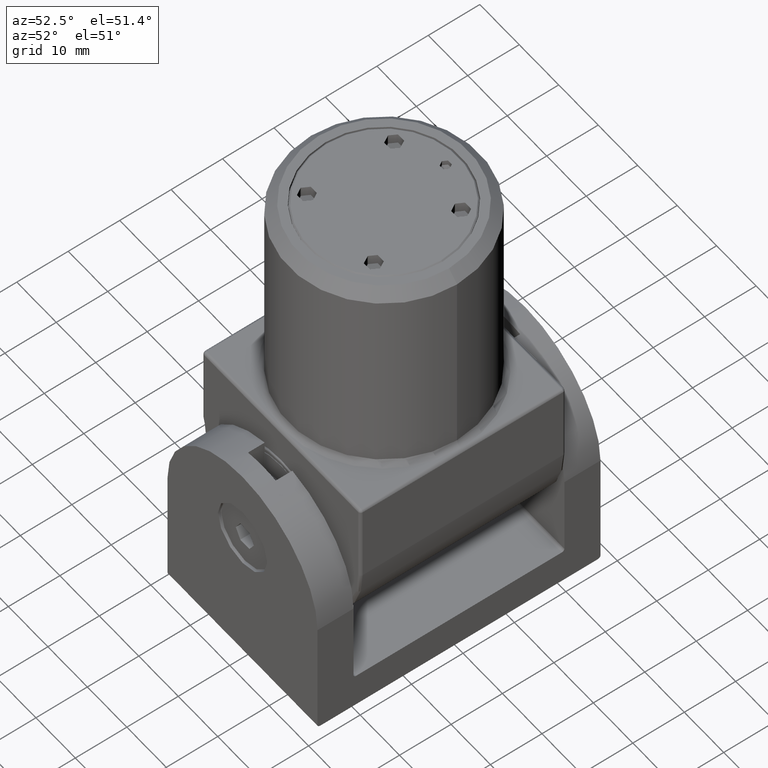
[diagram: clean part render]
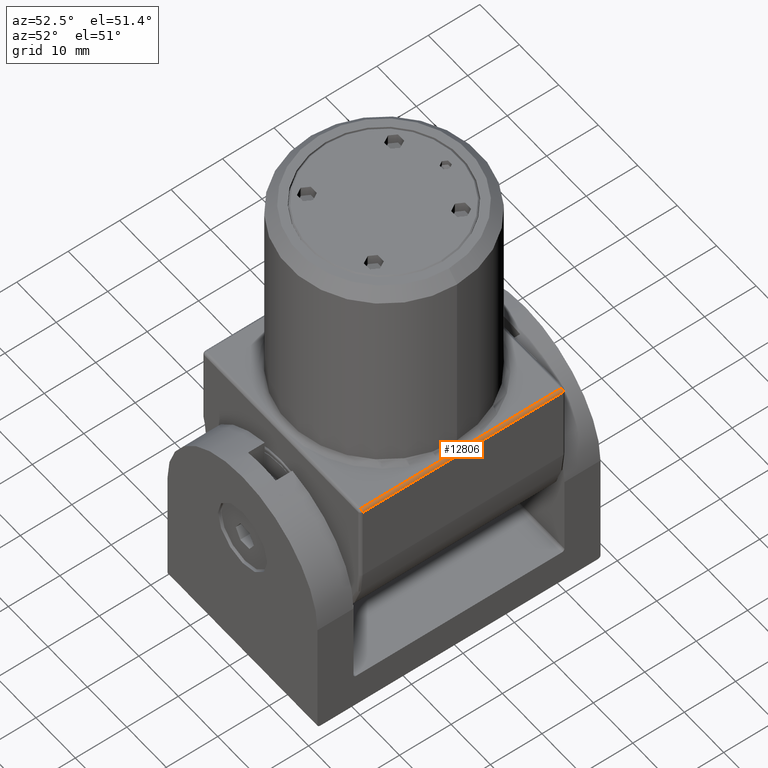
[diagram: same view with one face highlighted and labeled with its STEP entity id]
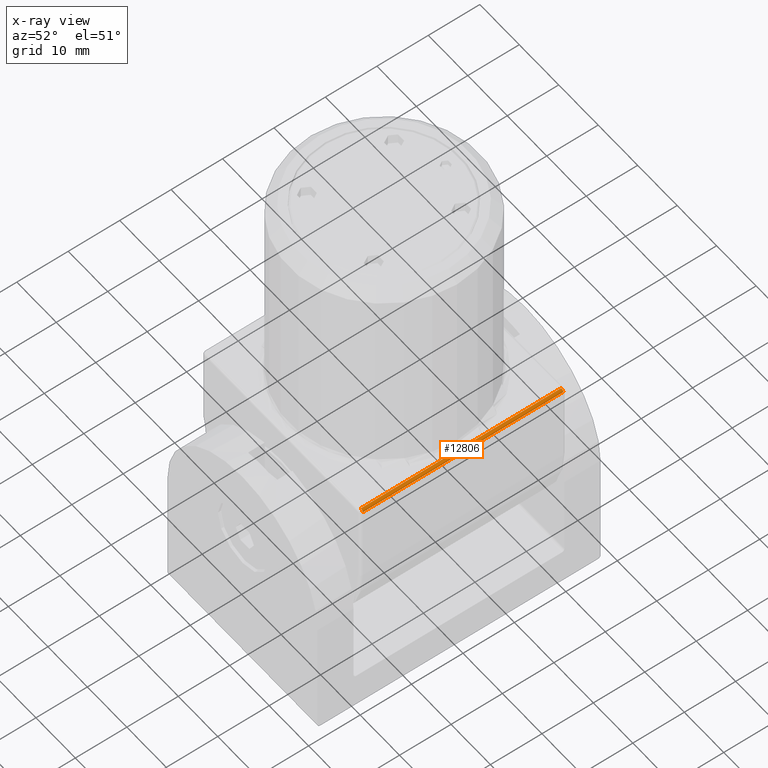
[diagram: x-ray of the same camera — body ghosted, the highlighted face saturated]
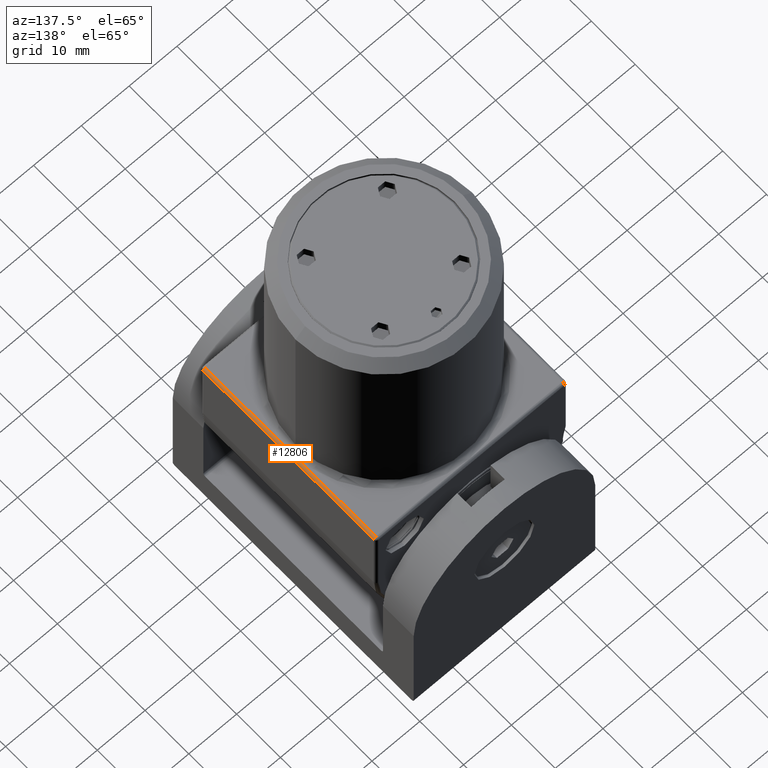
[diagram: same view with one face highlighted and labeled with its STEP entity id]
A machine part, auxiliary view. The second image highlights one B-rep face of the part: STEP entity #12806.
The next image is the same camera in x-ray: the body ghosted, the highlighted face saturated — about 0% of this face is hidden behind the body in this view.
A second angle (auxiliary view) of the same face is appended — the face is thin or edge-on in the first view.
In plain terms, the highlighted cylindrical surface (edge-blend (fillet) strip) has radius 0.5 mm, axis along (0, -1, 0).
Its self-contained STEP definition (entity closure, byte-faithful):
#64 = VERTEX_POINT ( 'NONE', #7484 ) ;
#217 = CARTESIAN_POINT ( 'NONE',  ( 20.00000000000000000, 19.50000000000000000, -0.4999999999999998890 ) ) ;
#450 = AXIS2_PLACEMENT_3D ( 'NONE', #18319, #9961, #6612 ) ;
#1019 = EDGE_CURVE ( 'NONE', #11243, #64, #11702, .T. ) ;
#1091 = EDGE_CURVE ( 'NONE', #1705, #9587, #2051, .T. ) ;
#1705 = VERTEX_POINT ( 'NONE', #9388 ) ;
#1876 = AXIS2_PLACEMENT_3D ( 'NONE', #5265, #12322, #6934 ) ;
#2051 = LINE ( 'NONE', #11638, #17544 ) ;
#2789 = EDGE_CURVE ( 'NONE', #9587, #64, #2944, .T. ) ;
#2944 = LINE ( 'NONE', #15236, #8051 ) ;
#3275 = LINE ( 'NONE', #9936, #15823 ) ;
#5016 = CIRCLE ( 'NONE', #16271, 0.5000000000000000000 ) ;
#5080 = DIRECTION ( 'NONE',  ( 0.000000000000000000, -1.000000000000000000, 0.000000000000000000 ) ) ;
#5226 = ORIENTED_EDGE ( 'NONE', *, *, #5513, .F. ) ;
#5265 = CARTESIAN_POINT ( 'NONE',  ( 19.50000000000000000, 20.00000000000000000, -0.5000000000000000000 ) ) ;
#5513 = EDGE_CURVE ( 'NONE', #13103, #1705, #5016, .T. ) ;
#6612 = DIRECTION ( 'NONE',  ( 0.000000000000000000, 0.000000000000000000, 1.000000000000000000 ) ) ;
#6934 = DIRECTION ( 'NONE',  ( 0.000000000000000000, 0.000000000000000000, -1.000000000000000000 ) ) ;
#7122 = CARTESIAN_POINT ( 'NONE',  ( 19.50000000000000000, 0.000000000000000000, 0.000000000000000000 ) ) ;
#7484 = CARTESIAN_POINT ( 'NONE',  ( 19.50000000000000000, 19.50000000000000000, 0.000000000000000000 ) ) ;
#8051 = VECTOR ( 'NONE', #18583, 1000.000000000000000 ) ;
#9388 = CARTESIAN_POINT ( 'NONE',  ( 19.50000000000000000, -19.50000000000000000, 0.000000000000000000 ) ) ;
#9587 = VERTEX_POINT ( 'NONE', #7122 ) ;
#9936 = CARTESIAN_POINT ( 'NONE',  ( 20.00000000000000000, 20.00000000000000000, -0.4999999999999998890 ) ) ;
#9961 = DIRECTION ( 'NONE',  ( -0.000000000000000000, -1.000000000000000000, -0.000000000000000000 ) ) ;
#11243 = VERTEX_POINT ( 'NONE', #217 ) ;
#11630 = DIRECTION ( 'NONE',  ( 0.000000000000000000, 0.000000000000000000, -1.000000000000000000 ) ) ;
#11638 = CARTESIAN_POINT ( 'NONE',  ( 19.50000000000000000, 20.00000000000000000, 0.000000000000000000 ) ) ;
#11702 = CIRCLE ( 'NONE', #450, 0.5000000000000000000 ) ;
#12322 = DIRECTION ( 'NONE',  ( 0.000000000000000000, -1.000000000000000000, 0.000000000000000000 ) ) ;
#12806 = ADVANCED_FACE ( 'NONE', ( #17296 ), #16241, .T. ) ;
#13103 = VERTEX_POINT ( 'NONE', #13195 ) ;
#13195 = CARTESIAN_POINT ( 'NONE',  ( 20.00000000000000000, -19.50000000000000000, -0.4999999999999998890 ) ) ;
#13411 = DIRECTION ( 'NONE',  ( -0.000000000000000000, 1.000000000000000000, -0.000000000000000000 ) ) ;
#13736 = EDGE_CURVE ( 'NONE', #11243, #13103, #3275, .T. ) ;
#14841 = ORIENTED_EDGE ( 'NONE', *, *, #1091, .F. ) ;
#15236 = CARTESIAN_POINT ( 'NONE',  ( 19.50000000000000000, 20.00000000000000000, 0.000000000000000000 ) ) ;
#15823 = VECTOR ( 'NONE', #19931, 1000.000000000000000 ) ;
#16241 = CYLINDRICAL_SURFACE ( 'NONE', #1876, 0.5000000000000000000 ) ;
#16271 = AXIS2_PLACEMENT_3D ( 'NONE', #17019, #5080, #11630 ) ;
#17019 = CARTESIAN_POINT ( 'NONE',  ( 19.50000000000000000, -19.50000000000000000, -0.5000000000000000000 ) ) ;
#17296 = FACE_OUTER_BOUND ( 'NONE', #18262, .T. ) ;
#17544 = VECTOR ( 'NONE', #13411, 1000.000000000000000 ) ;
#17713 = ORIENTED_EDGE ( 'NONE', *, *, #1019, .T. ) ;
#18262 = EDGE_LOOP ( 'NONE', ( #18976, #14841, #5226, #18895, #17713 ) ) ;
#18319 = CARTESIAN_POINT ( 'NONE',  ( 19.50000000000000000, 19.50000000000000000, -0.5000000000000000000 ) ) ;
#18583 = DIRECTION ( 'NONE',  ( -0.000000000000000000, 1.000000000000000000, -0.000000000000000000 ) ) ;
#18895 = ORIENTED_EDGE ( 'NONE', *, *, #13736, .F. ) ;
#18976 = ORIENTED_EDGE ( 'NONE', *, *, #2789, .F. ) ;
#19931 = DIRECTION ( 'NONE',  ( 0.000000000000000000, -1.000000000000000000, 0.000000000000000000 ) ) ;